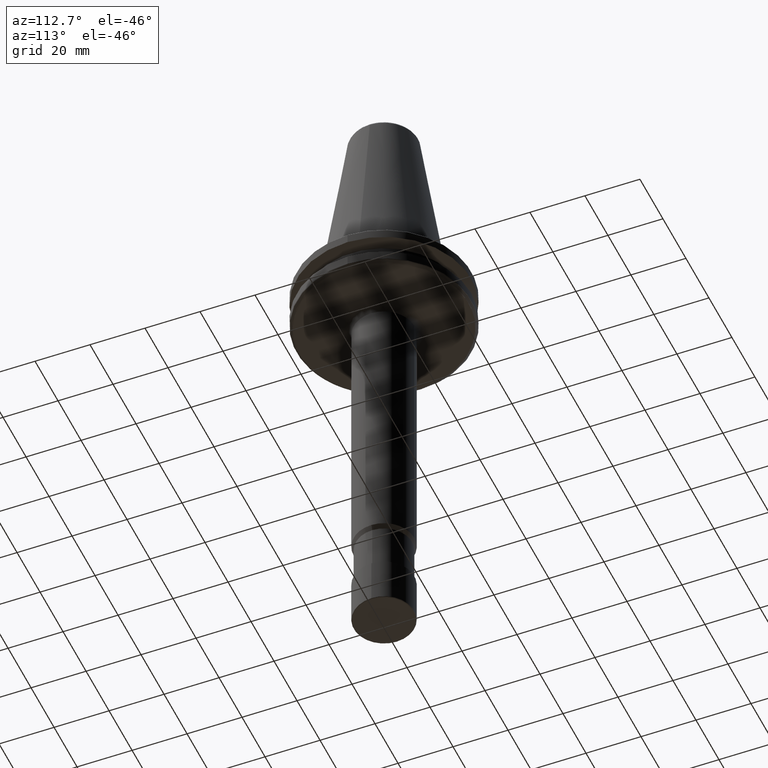
[diagram: clean part render]
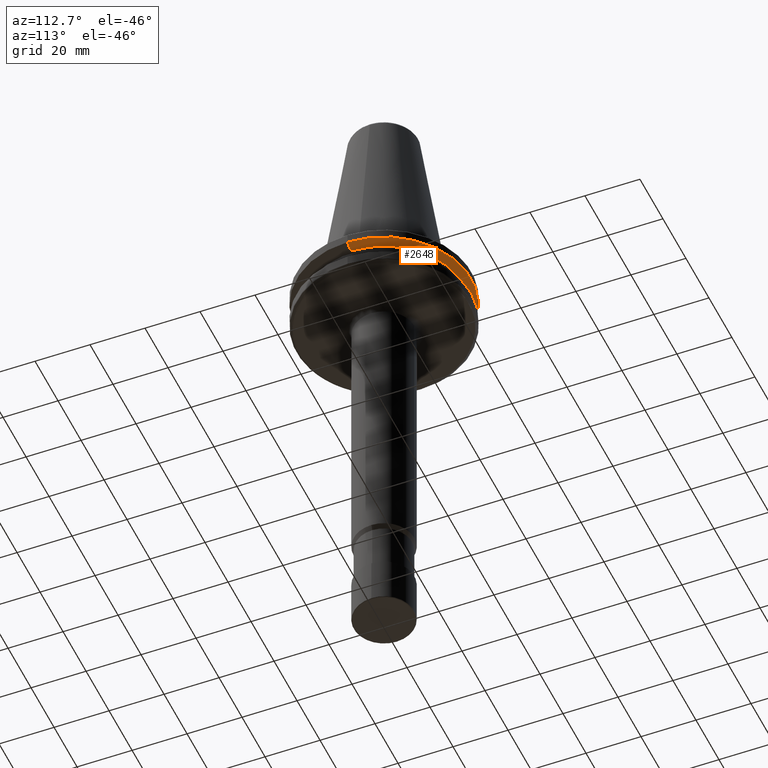
[diagram: same view with one face highlighted and labeled with its STEP entity id]
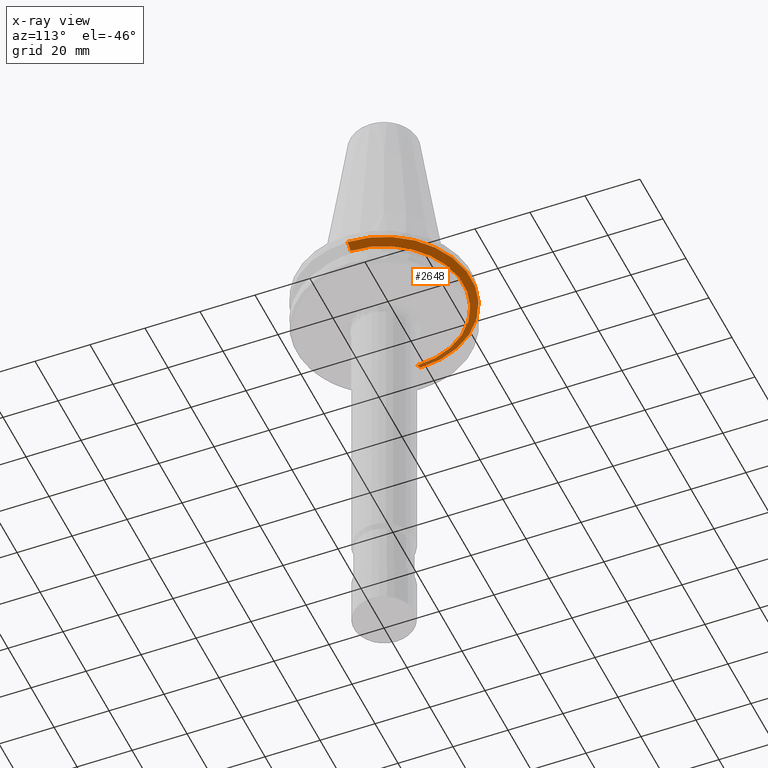
[diagram: x-ray of the same camera — body ghosted, the highlighted face saturated]
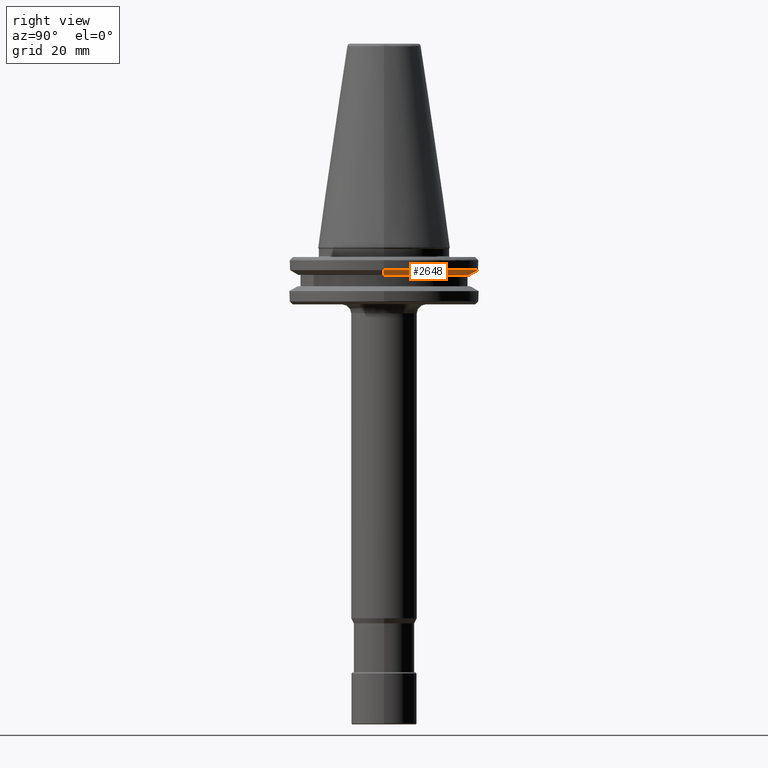
[diagram: same view with one face highlighted and labeled with its STEP entity id]
A machine part, auxiliary view. The second image highlights one B-rep face of the part: STEP entity #2648.
The next image is the same camera in x-ray: the body ghosted, the highlighted face saturated — about 0% of this face is hidden behind the body in this view.
A second angle (right view) of the same face is appended — the face is thin or edge-on in the first view.
In plain terms, the highlighted conical surface has half-angle 60 deg.
Its self-contained STEP definition (entity closure, byte-faithful):
#40 = DIRECTION ( 'NONE',  ( 0.0000000000000000000, -0.0000000000000000000, 1.000000000000000000 ) ) ;
#160 = FACE_OUTER_BOUND ( 'NONE', #2818, .T. ) ;
#313 = CARTESIAN_POINT ( 'NONE',  ( 0.0000000000000000000, 0.0000000000000000000, -7.578163358000100700 ) ) ;
#630 = VECTOR ( 'NONE', #1798, 1000.000000000000100 ) ;
#666 = LINE ( 'NONE', #849, #630 ) ;
#728 = CARTESIAN_POINT ( 'NONE',  ( 31.75000000000000000, 0.0000000000000000000, -7.578163358000100700 ) ) ;
#744 = AXIS2_PLACEMENT_3D ( 'NONE', #313, #2930, #2560 ) ;
#846 = EDGE_CURVE ( 'NONE', #1334, #2305, #2631, .T. ) ;
#849 = CARTESIAN_POINT ( 'NONE',  ( -28.94089653399999700, 3.544237630481782400E-015, -9.199999999999999300 ) ) ;
#958 = AXIS2_PLACEMENT_3D ( 'NONE', #1136, #3164, #1942 ) ;
#1113 = AXIS2_PLACEMENT_3D ( 'NONE', #2183, #40, #2456 ) ;
#1126 = ORIENTED_EDGE ( 'NONE', *, *, #846, .F. ) ;
#1136 = CARTESIAN_POINT ( 'NONE',  ( 0.0000000000000000000, 0.0000000000000000000, -9.199999999999995700 ) ) ;
#1231 = EDGE_CURVE ( 'NONE', #1334, #2354, #666, .T. ) ;
#1334 = VERTEX_POINT ( 'NONE', #2661 ) ;
#1499 = CARTESIAN_POINT ( 'NONE',  ( 28.94089653399999700, 0.0000000000000000000, -9.199999999999999300 ) ) ;
#1628 = ORIENTED_EDGE ( 'NONE', *, *, #1231, .T. ) ;
#1798 = DIRECTION ( 'NONE',  ( -0.8660254038213648400, 1.060575238770128500E-016, 0.4999999999360417200 ) ) ;
#1847 = DIRECTION ( 'NONE',  ( 0.8660254038213648400, 0.0000000000000000000, 0.4999999999360417200 ) ) ;
#1937 = VERTEX_POINT ( 'NONE', #728 ) ;
#1942 = DIRECTION ( 'NONE',  ( 1.000000000000000000, 0.0000000000000000000, 0.0000000000000000000 ) ) ;
#2044 = EDGE_CURVE ( 'NONE', #1937, #2354, #2098, .T. ) ;
#2098 = CIRCLE ( 'NONE', #744, 31.75000000000000000 ) ;
#2183 = CARTESIAN_POINT ( 'NONE',  ( 0.0000000000000000000, 0.0000000000000000000, -9.199999999999999300 ) ) ;
#2245 = EDGE_CURVE ( 'NONE', #2305, #1937, #2381, .T. ) ;
#2305 = VERTEX_POINT ( 'NONE', #2553 ) ;
#2354 = VERTEX_POINT ( 'NONE', #2471 ) ;
#2381 = LINE ( 'NONE', #1499, #2421 ) ;
#2421 = VECTOR ( 'NONE', #1847, 1000.000000000000100 ) ;
#2456 = DIRECTION ( 'NONE',  ( 1.000000000000000000, 0.0000000000000000000, 0.0000000000000000000 ) ) ;
#2471 = CARTESIAN_POINT ( 'NONE',  ( -31.75000000000000000, 3.888253587292846500E-015, -7.578163358000100700 ) ) ;
#2553 = CARTESIAN_POINT ( 'NONE',  ( 28.94089653400000400, 0.0000000000000000000, -9.199999999999995700 ) ) ;
#2560 = DIRECTION ( 'NONE',  ( 1.000000000000000000, 0.0000000000000000000, 3.168943672650545300E-015 ) ) ;
#2631 = CIRCLE ( 'NONE', #958, 28.94089653400000400 ) ;
#2648 = ADVANCED_FACE ( 'NONE', ( #160 ), #3202, .T. ) ;
#2661 = CARTESIAN_POINT ( 'NONE',  ( -28.94089653400000400, 3.716245608953329500E-015, -9.199999999999995700 ) ) ;
#2818 = EDGE_LOOP ( 'NONE', ( #1126, #1628, #3391, #3340 ) ) ;
#2930 = DIRECTION ( 'NONE',  ( 0.0000000000000000000, 0.0000000000000000000, 1.000000000000000000 ) ) ;
#3164 = DIRECTION ( 'NONE',  ( -0.0000000000000000000, 0.0000000000000000000, -1.000000000000000000 ) ) ;
#3202 = CONICAL_SURFACE ( 'NONE', #1113, 28.94089653399999700, 1.047197551270450300 ) ;
#3340 = ORIENTED_EDGE ( 'NONE', *, *, #2245, .F. ) ;
#3391 = ORIENTED_EDGE ( 'NONE', *, *, #2044, .F. ) ;